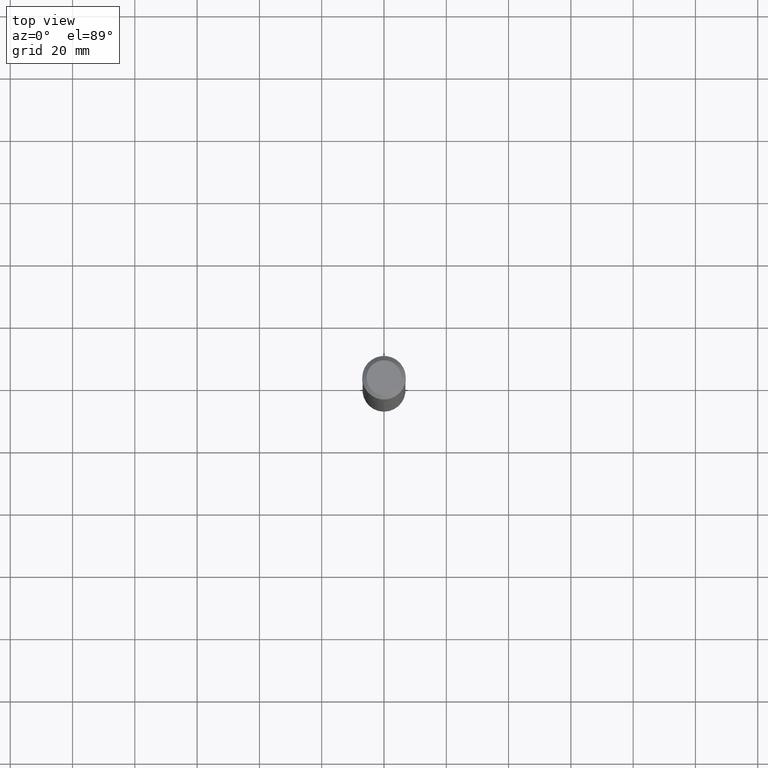
[diagram: clean part render]
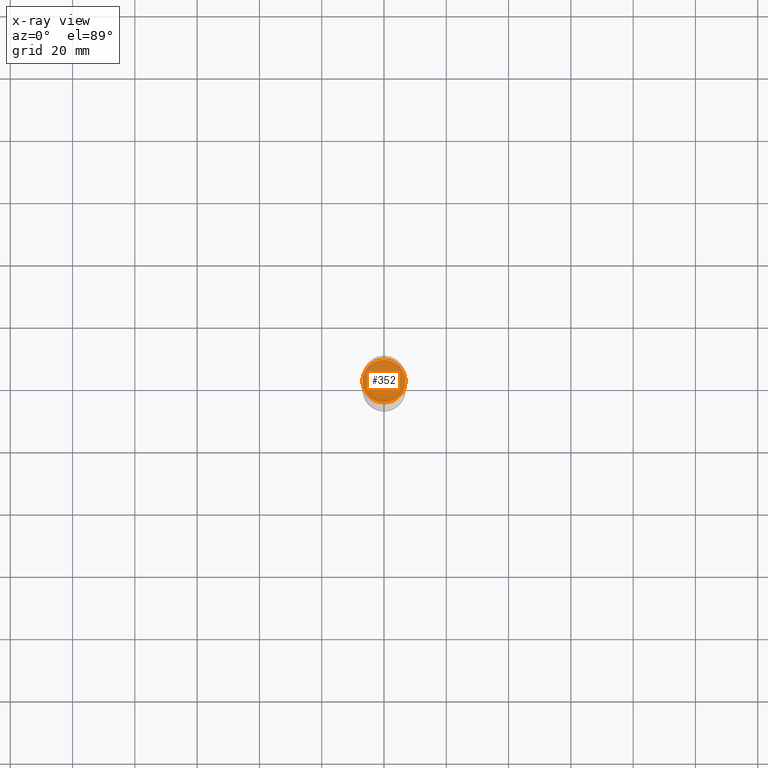
[diagram: x-ray — body ghosted, one internal face saturated and labeled with its STEP entity id]
A machine part, top view, then the same camera in x-ray: the body is ghosted and one INTERNAL B-rep face — a face not visible from any outside direction — is saturated and labeled: STEP entity #352.
In plain terms, the highlighted planar face has unit normal (0, -0, -1).
Its self-contained STEP definition (entity closure, byte-faithful):
#34 = CIRCLE ( 'NONE', #173, 0.2716500000000000026 ) ;
#38 = ORIENTED_EDGE ( 'NONE', *, *, #59, .T. ) ;
#50 = VERTEX_POINT ( 'NONE', #76 ) ;
#59 = EDGE_CURVE ( 'NONE', #50, #199, #277, .T. ) ;
#70 = DIRECTION ( 'NONE',  ( -6.982962677686265133E-15, -1.000000000000000000, 4.022599659362065925E-15 ) ) ;
#76 = CARTESIAN_POINT ( 'NONE',  ( -1.896921811393410905E-15, -0.2716500000000090509, -2.586999999999997080 ) ) ;
#94 = DIRECTION ( 'NONE',  ( 6.982962677686265922E-15, 1.000000000000000000, -3.491329728739120153E-15 ) ) ;
#98 = AXIS2_PLACEMENT_3D ( 'NONE', #259, #105, #70 ) ;
#105 = DIRECTION ( 'NONE',  ( -2.445574674954933606E-29, 3.491329728739120153E-15, 1.000000000000000000 ) ) ;
#130 = FACE_OUTER_BOUND ( 'NONE', #254, .T. ) ;
#136 = DIRECTION ( 'NONE',  ( 2.445574674954933326E-29, -3.491329728739120153E-15, -1.000000000000000000 ) ) ;
#148 = ORIENTED_EDGE ( 'NONE', *, *, #474, .T. ) ;
#173 = AXIS2_PLACEMENT_3D ( 'NONE', #448, #342, #419 ) ;
#199 = VERTEX_POINT ( 'NONE', #347 ) ;
#254 = EDGE_LOOP ( 'NONE', ( #38, #148 ) ) ;
#259 = CARTESIAN_POINT ( 'NONE',  ( 6.326427801600944107E-29, -9.032462223587211297E-15, -2.586999999999998412 ) ) ;
#277 = CIRCLE ( 'NONE', #98, 0.2716500000000000026 ) ;
#281 = PLANE ( 'NONE',  #369 ) ;
#325 = CARTESIAN_POINT ( 'NONE',  ( 6.326427801600944107E-29, -9.032462223587211297E-15, -2.586999999999998412 ) ) ;
#342 = DIRECTION ( 'NONE',  ( -2.445574674954933606E-29, 3.491329728739120153E-15, 1.000000000000000000 ) ) ;
#347 = CARTESIAN_POINT ( 'NONE',  ( 1.930189341692536210E-15, 0.2716499999999909543, -2.586999999999999300 ) ) ;
#352 = ADVANCED_FACE ( 'NONE', ( #130 ), #281, .F. ) ;
#369 = AXIS2_PLACEMENT_3D ( 'NONE', #325, #136, #94 ) ;
#419 = DIRECTION ( 'NONE',  ( -6.982962677686265133E-15, -1.000000000000000000, 4.022599659362065925E-15 ) ) ;
#448 = CARTESIAN_POINT ( 'NONE',  ( 6.326427801600944107E-29, -9.032462223587211297E-15, -2.586999999999998412 ) ) ;
#474 = EDGE_CURVE ( 'NONE', #199, #50, #34, .T. ) ;